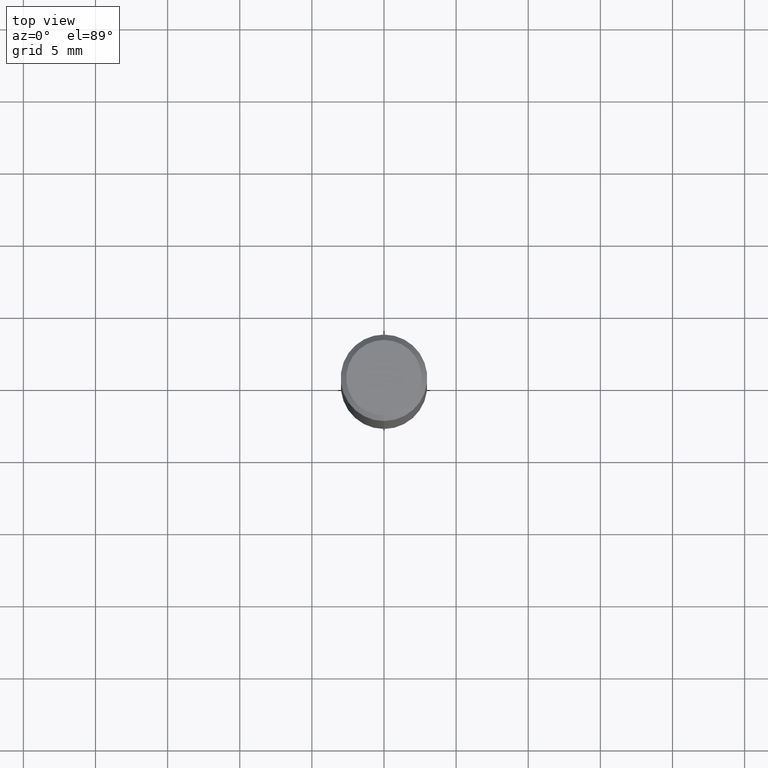
[diagram: clean part render]
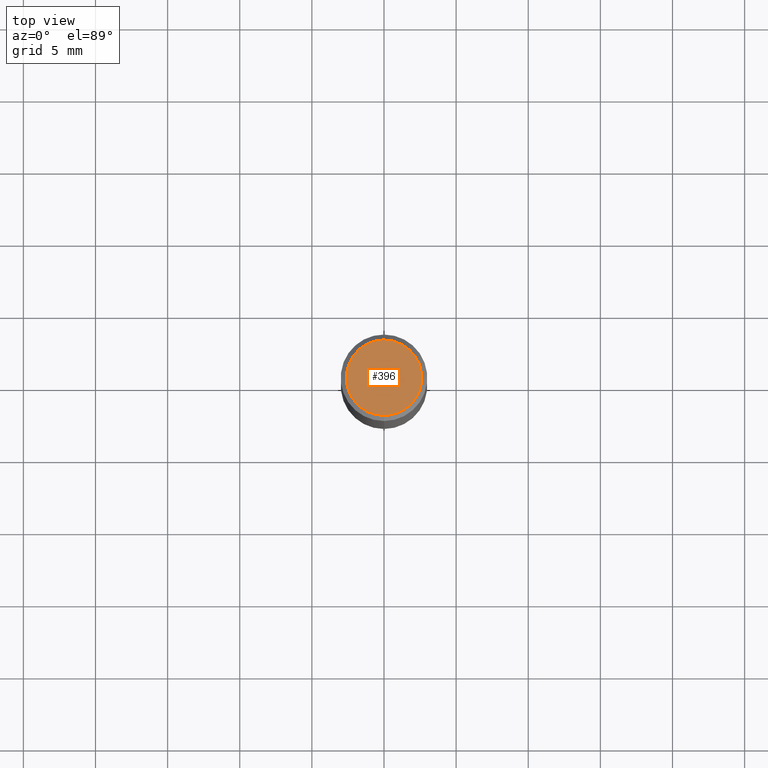
[diagram: same view with one face highlighted and labeled with its STEP entity id]
A machine part, top view. The second image highlights one B-rep face of the part: STEP entity #396.
In plain terms, the highlighted planar face has unit normal (0, -0, -1).
Its self-contained STEP definition (entity closure, byte-faithful):
#11 = EDGE_LOOP ( 'NONE', ( #499, #261 ) ) ;
#27 = VERTEX_POINT ( 'NONE', #373 ) ;
#80 = DIRECTION ( 'NONE',  ( -2.445312692479667883E-29, 3.491704902554816982E-15, 1.000000000000000000 ) ) ;
#88 = EDGE_CURVE ( 'NONE', #184, #27, #437, .T. ) ;
#117 = DIRECTION ( 'NONE',  ( 2.445312692479667602E-29, -3.491704902554816982E-15, -1.000000000000000000 ) ) ;
#148 = CIRCLE ( 'NONE', #500, 0.1030999999999999833 ) ;
#184 = VERTEX_POINT ( 'NONE', #504 ) ;
#188 = AXIS2_PLACEMENT_3D ( 'NONE', #249, #117, #477 ) ;
#197 = CARTESIAN_POINT ( 'NONE',  ( 3.492064462135871408E-45, -4.986380122254510664E-31, -1.428064587762289781E-16 ) ) ;
#249 = CARTESIAN_POINT ( 'NONE',  ( 7.199434520694539070E-16, 0.1030999999999999833, -4.313980048415160526E-16 ) ) ;
#251 = DIRECTION ( 'NONE',  ( -2.445312692479667883E-29, 3.491704902554816982E-15, 1.000000000000000000 ) ) ;
#261 = ORIENTED_EDGE ( 'NONE', *, *, #88, .T. ) ;
#327 = FACE_OUTER_BOUND ( 'NONE', #11, .T. ) ;
#361 = CARTESIAN_POINT ( 'NONE',  ( 3.492064462135871408E-45, -4.986380122254510664E-31, -1.428064587762289781E-16 ) ) ;
#373 = CARTESIAN_POINT ( 'NONE',  ( 7.723156721521010848E-16, 0.1030999999999999833, -5.028012342296305664E-16 ) ) ;
#396 = ADVANCED_FACE ( 'NONE', ( #327 ), #433, .F. ) ;
#420 = EDGE_CURVE ( 'NONE', #27, #184, #148, .T. ) ;
#424 = AXIS2_PLACEMENT_3D ( 'NONE', #197, #80, #506 ) ;
#433 = PLANE ( 'NONE',  #188 ) ;
#437 = CIRCLE ( 'NONE', #424, 0.1030999999999999833 ) ;
#477 = DIRECTION ( 'NONE',  ( 6.982962677686265922E-15, 1.000000000000000000, -3.491704902554816982E-15 ) ) ;
#494 = DIRECTION ( 'NONE',  ( -6.982962677686265922E-15, -1.000000000000000000, 3.491704902554816587E-15 ) ) ;
#499 = ORIENTED_EDGE ( 'NONE', *, *, #420, .T. ) ;
#500 = AXIS2_PLACEMENT_3D ( 'NONE', #361, #251, #494 ) ;
#504 = CARTESIAN_POINT ( 'NONE',  ( -7.587710785535310407E-16, -0.1030999999999999833, 2.171883166771725854E-16 ) ) ;
#506 = DIRECTION ( 'NONE',  ( -6.982962677686265922E-15, -1.000000000000000000, 3.491704902554816587E-15 ) ) ;